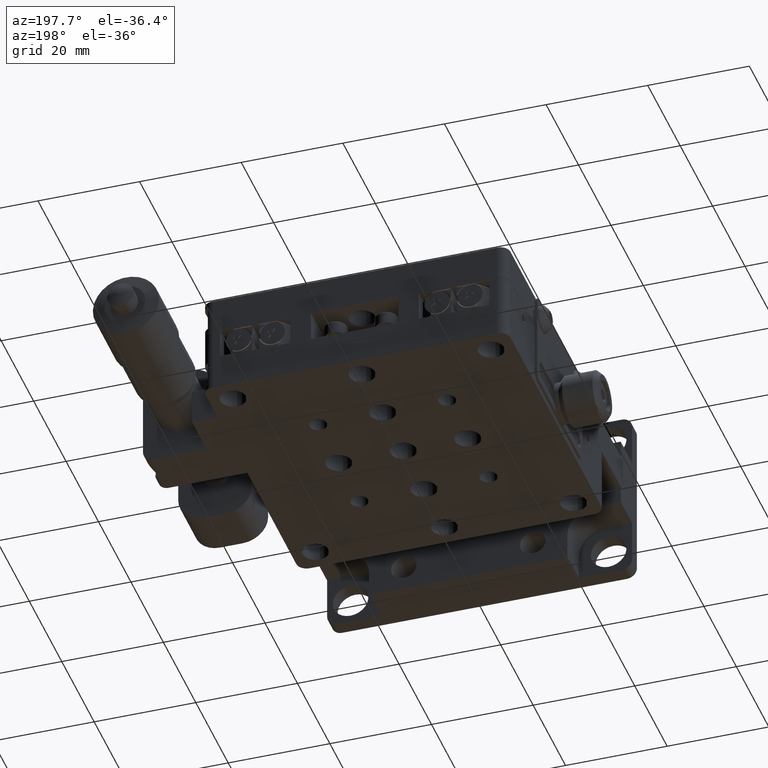
[diagram: clean part render]
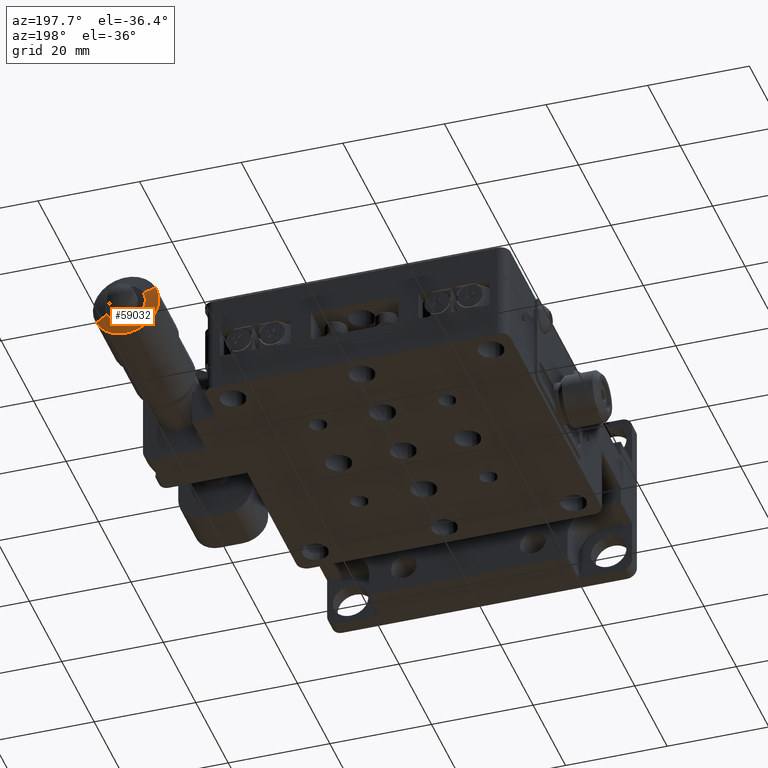
[diagram: same view with one face highlighted and labeled with its STEP entity id]
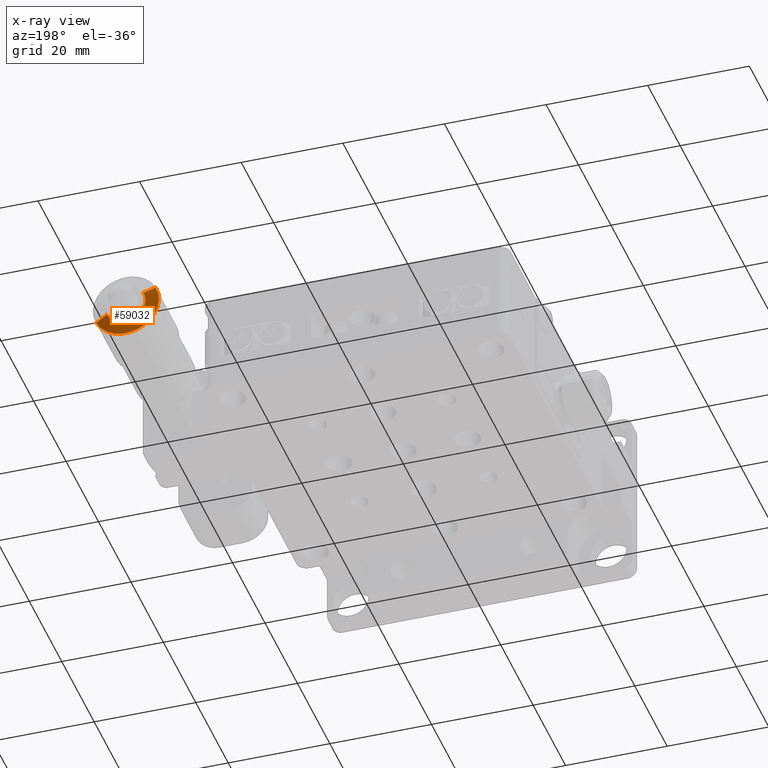
[diagram: x-ray of the same camera — body ghosted, the highlighted face saturated]
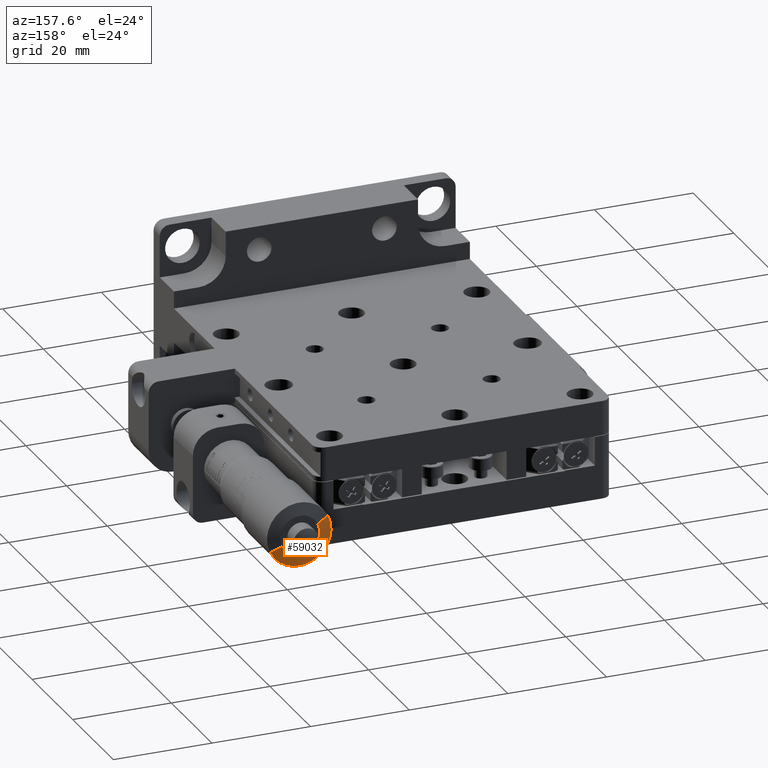
[diagram: same view with one face highlighted and labeled with its STEP entity id]
A machine part, auxiliary view. The second image highlights one B-rep face of the part: STEP entity #59032.
The next image is the same camera in x-ray: the body ghosted, the highlighted face saturated — about 0% of this face is hidden behind the body in this view.
A second angle (auxiliary view) of the same face is appended — the face is thin or edge-on in the first view.
In plain terms, the highlighted conical surface has half-angle 78.69 deg.
Its self-contained STEP definition (entity closure, byte-faithful):
#435 = EDGE_LOOP ( 'NONE', ( #17865, #46132, #41966, #53010 ) ) ;
#1711 = DIRECTION ( 'NONE',  ( 0.8846520695211187400, -0.1961161351381838800, -0.4230002097286279500 ) ) ;
#2301 = AXIS2_PLACEMENT_3D ( 'NONE', #53907, #16796, #35961 ) ;
#3787 = VERTEX_POINT ( 'NONE', #48909 ) ;
#3825 = EDGE_CURVE ( 'NONE', #3787, #17734, #49785, .T. ) ;
#5009 = CARTESIAN_POINT ( 'NONE',  ( 34.13588438520309900, 85.79000660395603000, -2.996047779298083700 ) ) ;
#7993 = EDGE_CURVE ( 'NONE', #24139, #47873, #36755, .T. ) ;
#8903 = AXIS2_PLACEMENT_3D ( 'NONE', #35851, #60570, #51477 ) ;
#11220 = VECTOR ( 'NONE', #1711, 1000.000000000000100 ) ;
#16036 = CARTESIAN_POINT ( 'NONE',  ( 43.60868653218280100, 86.29000660395603000, -7.525509058984328100 ) ) ;
#16796 = DIRECTION ( 'NONE',  ( -1.101876641632671200E-016, 1.000000000000000000, -2.975472225002075800E-018 ) ) ;
#17734 = VERTEX_POINT ( 'NONE', #5009 ) ;
#17865 = ORIENTED_EDGE ( 'NONE', *, *, #3825, .F. ) ;
#21430 = CIRCLE ( 'NONE', #2301, 4.000000000000001800 ) ;
#22322 = CARTESIAN_POINT ( 'NONE',  ( 45.86411561479698700, 85.79000660395603000, -8.603952220814420600 ) ) ;
#24106 = FACE_OUTER_BOUND ( 'NONE', #435, .T. ) ;
#24139 = VERTEX_POINT ( 'NONE', #16036 ) ;
#31432 = EDGE_CURVE ( 'NONE', #24139, #3787, #21430, .T. ) ;
#35851 = CARTESIAN_POINT ( 'NONE',  ( 40.00000000000005700, 86.29000660395603000, -5.800000000056235700 ) ) ;
#35961 = DIRECTION ( 'NONE',  ( -0.9021716330456850400, 0.0000000000000000000, 0.4313772647320232000 ) ) ;
#36755 = LINE ( 'NONE', #39780, #11220 ) ;
#38677 = VECTOR ( 'NONE', #53856, 1000.000000000000200 ) ;
#39406 = CARTESIAN_POINT ( 'NONE',  ( 36.39131346781731200, 86.29000660395603000, -4.074490941128141600 ) ) ;
#39780 = CARTESIAN_POINT ( 'NONE',  ( 43.60868653218280100, 86.29000660395603000, -7.525509058984329000 ) ) ;
#41966 = ORIENTED_EDGE ( 'NONE', *, *, #7993, .T. ) ;
#42034 = CIRCLE ( 'NONE', #47639, 6.500000000000007100 ) ;
#45901 = EDGE_CURVE ( 'NONE', #47873, #17734, #42034, .T. ) ;
#46132 = ORIENTED_EDGE ( 'NONE', *, *, #31432, .F. ) ;
#47639 = AXIS2_PLACEMENT_3D ( 'NONE', #48341, #58071, #48126 ) ;
#47873 = VERTEX_POINT ( 'NONE', #22322 ) ;
#48126 = DIRECTION ( 'NONE',  ( -0.9021716330456850400, 0.0000000000000000000, 0.4313772647320229200 ) ) ;
#48341 = CARTESIAN_POINT ( 'NONE',  ( 40.00000000000005700, 85.79000660395603000, -5.800000000056235700 ) ) ;
#48909 = CARTESIAN_POINT ( 'NONE',  ( 36.39131346781731200, 86.29000660395603000, -4.074490941128140700 ) ) ;
#49785 = LINE ( 'NONE', #39406, #38677 ) ;
#51477 = DIRECTION ( 'NONE',  ( 0.9021716330456850400, 0.0000000000000000000, -0.4313772647320232000 ) ) ;
#53010 = ORIENTED_EDGE ( 'NONE', *, *, #45901, .T. ) ;
#53856 = DIRECTION ( 'NONE',  ( -0.8846520695211186300, -0.1961161351381840200, 0.4230002097286280600 ) ) ;
#53907 = CARTESIAN_POINT ( 'NONE',  ( 40.00000000000005700, 86.29000660395603000, -5.800000000056235700 ) ) ;
#55732 = CONICAL_SURFACE ( 'NONE', #8903, 4.000000000000001800, 1.373400766945015700 ) ;
#58071 = DIRECTION ( 'NONE',  ( -1.101876641632671200E-016, 1.000000000000000000, -2.975472225002075800E-018 ) ) ;
#59032 = ADVANCED_FACE ( 'NONE', ( #24106 ), #55732, .T. ) ;
#60570 = DIRECTION ( 'NONE',  ( 1.101876641632671200E-016, -1.000000000000000000, 2.975472225002075800E-018 ) ) ;